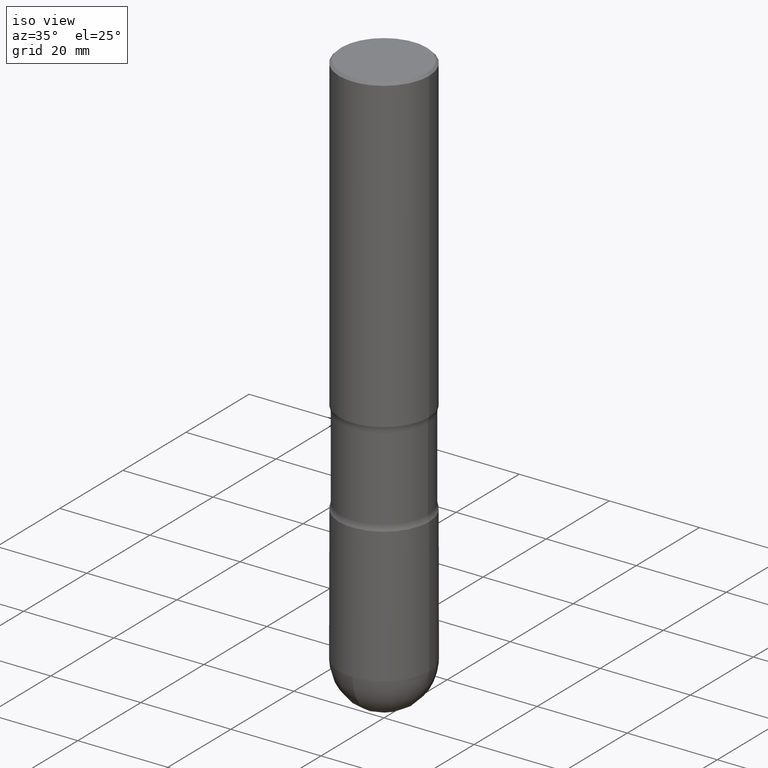
[diagram: clean part render]
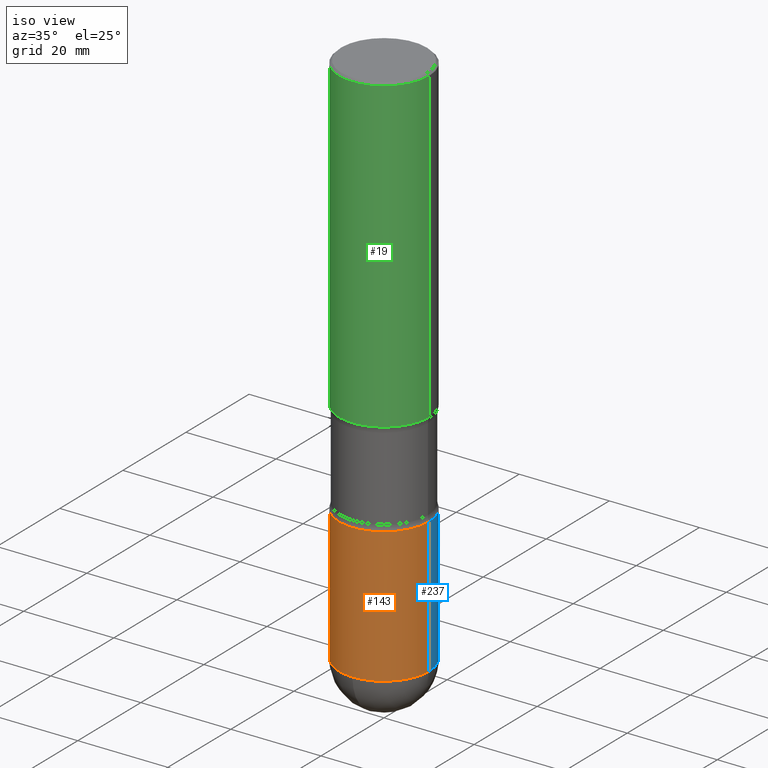
[diagram: same view with three faces highlighted in distinct colors, each labeled with its STEP entity id]
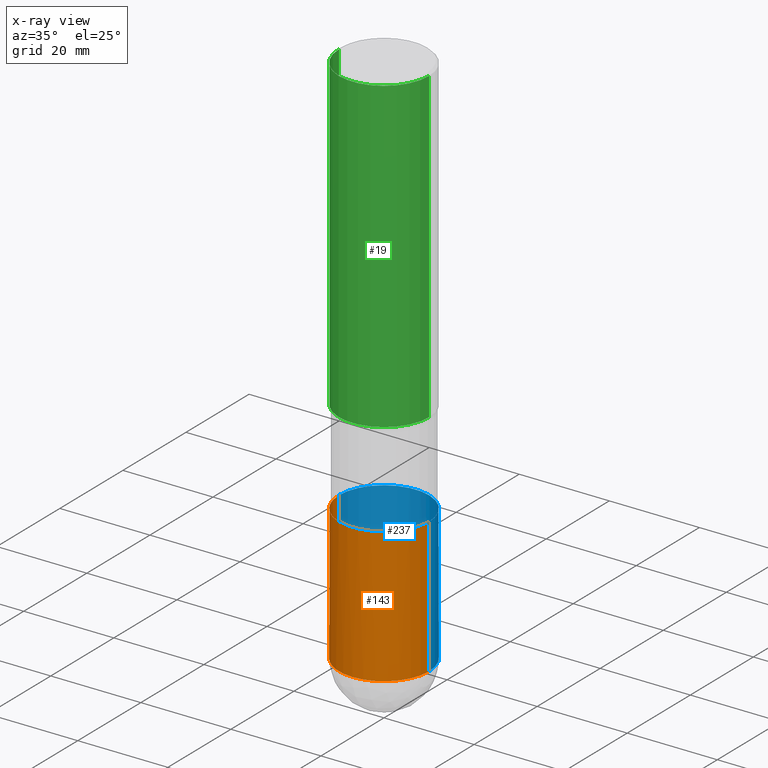
[diagram: x-ray of the same camera — body ghosted, the three highlighted faces saturated]
A machine part, iso view with three faces highlighted in distinct colors.
The next image is the same camera in x-ray (body ghosted, the three faces saturated) — at least one of them is partly hidden behind the body in this view.
Their STEP definitions:

[orange] entity #143 — the highlighted cylindrical surface (partial cylindrical patch) has radius 10 mm, axis along (-0, 0, 1).
#5 = CARTESIAN_POINT ( 'NONE',  ( -0.3936999999999992172, -1.163585338188923205E-14, -4.724399999999998379 ) ) ;
#8 = DIRECTION ( 'NONE',  ( -2.445468806185136597E-29, 3.491481338843145583E-15, 1.000000000000000000 ) ) ;
#32 = AXIS2_PLACEMENT_3D ( 'NONE', #343, #8, #434 ) ;
#42 = AXIS2_PLACEMENT_3D ( 'NONE', #74, #526, #440 ) ;
#55 = ORIENTED_EDGE ( 'NONE', *, *, #232, .T. ) ;
#72 = DIRECTION ( 'NONE',  ( -2.445468806185136877E-29, 3.491481338843145188E-15, 1.000000000000000000 ) ) ;
#74 = CARTESIAN_POINT ( 'NONE',  ( 0.000000000000000000, 0.000000000000000000, 0.000000000000000000 ) ) ;
#89 = DIRECTION ( 'NONE',  ( 1.000000000000000000, -6.982962677686267499E-15, 0.000000000000000000 ) ) ;
#102 = ORIENTED_EDGE ( 'NONE', *, *, #489, .T. ) ;
#111 = CIRCLE ( 'NONE', #435, 0.3936999999999992172 ) ;
#136 = FACE_OUTER_BOUND ( 'NONE', #167, .T. ) ;
#143 = ADVANCED_FACE ( 'NONE', ( #136 ), #289, .T. ) ;
#167 = EDGE_LOOP ( 'NONE', ( #393, #55, #311, #102, #306 ) ) ;
#174 = CIRCLE ( 'NONE', #32, 0.3936999999999992172 ) ;
#177 = CARTESIAN_POINT ( 'NONE',  ( 1.155337282794105502E-28, -1.649515443723055294E-14, -4.724399999999998379 ) ) ;
#184 = CARTESIAN_POINT ( 'NONE',  ( 8.665029620955795190E-29, -1.237136582792291865E-14, -3.543300000000000338 ) ) ;
#194 = LINE ( 'NONE', #411, #532 ) ;
#195 = VERTEX_POINT ( 'NONE', #215 ) ;
#201 = EDGE_CURVE ( 'NONE', #195, #376, #174, .T. ) ;
#215 = CARTESIAN_POINT ( 'NONE',  ( -2.749192406204962521E-15, -0.3937000000000158151, -4.724399999999996602 ) ) ;
#232 = EDGE_CURVE ( 'NONE', #244, #195, #111, .T. ) ;
#244 = VERTEX_POINT ( 'NONE', #5 ) ;
#264 = EDGE_CURVE ( 'NONE', #269, #332, #266, .T. ) ;
#266 = CIRCLE ( 'NONE', #505, 0.3936999999999993283 ) ;
#269 = VERTEX_POINT ( 'NONE', #386 ) ;
#289 = CYLINDRICAL_SURFACE ( 'NONE', #42, 0.3936999999999992728 ) ;
#306 = ORIENTED_EDGE ( 'NONE', *, *, #264, .F. ) ;
#311 = ORIENTED_EDGE ( 'NONE', *, *, #201, .T. ) ;
#332 = VERTEX_POINT ( 'NONE', #358 ) ;
#343 = CARTESIAN_POINT ( 'NONE',  ( 1.155337282794105502E-28, -1.649515443723055294E-14, -4.724399999999998379 ) ) ;
#353 = DIRECTION ( 'NONE',  ( 1.000000000000000000, -6.982962677686265922E-15, 0.000000000000000000 ) ) ;
#358 = CARTESIAN_POINT ( 'NONE',  ( 0.3936999999999993283, -1.512055823412799713E-14, -3.543300000000000338 ) ) ;
#365 = DIRECTION ( 'NONE',  ( -2.445468806185136877E-29, 3.491481338843145188E-15, 1.000000000000000000 ) ) ;
#376 = VERTEX_POINT ( 'NONE', #540 ) ;
#386 = CARTESIAN_POINT ( 'NONE',  ( -0.3936999999999993283, -1.163585338188922574E-14, -3.543300000000000338 ) ) ;
#388 = VECTOR ( 'NONE', #72, 39.37007874015748143 ) ;
#393 = ORIENTED_EDGE ( 'NONE', *, *, #512, .F. ) ;
#411 = CARTESIAN_POINT ( 'NONE',  ( 0.3936999999999992728, -2.749192406205078089E-15, 1.919750796630856248E-29 ) ) ;
#419 = LINE ( 'NONE', #514, #388 ) ;
#434 = DIRECTION ( 'NONE',  ( 1.000000000000000000, -6.982962677686267499E-15, 0.000000000000000000 ) ) ;
#435 = AXIS2_PLACEMENT_3D ( 'NONE', #177, #533, #89 ) ;
#440 = DIRECTION ( 'NONE',  ( 1.000000000000000000, -6.982962677686266711E-15, 4.876176775795935232E-29 ) ) ;
#489 = EDGE_CURVE ( 'NONE', #376, #332, #194, .T. ) ;
#505 = AXIS2_PLACEMENT_3D ( 'NONE', #184, #527, #353 ) ;
#512 = EDGE_CURVE ( 'NONE', #244, #269, #419, .T. ) ;
#514 = CARTESIAN_POINT ( 'NONE',  ( -0.3936999999999992728, 2.797406750687509264E-15, -1.936584745033352812E-29 ) ) ;
#526 = DIRECTION ( 'NONE',  ( -2.445468806185136597E-29, 3.491481338843145583E-15, 1.000000000000000000 ) ) ;
#527 = DIRECTION ( 'NONE',  ( -2.445468806185136597E-29, 3.491481338843145583E-15, 1.000000000000000000 ) ) ;
#532 = VECTOR ( 'NONE', #365, 39.37007874015748143 ) ;
#533 = DIRECTION ( 'NONE',  ( -2.445468806185136597E-29, 3.491481338843145583E-15, 1.000000000000000000 ) ) ;
#540 = CARTESIAN_POINT ( 'NONE',  ( 0.3936999999999992172, -1.718245253878181507E-14, -4.724399999999998379 ) ) ;

[blue] entity #237 — the highlighted cylindrical surface (partial cylindrical patch) has radius 10 mm, axis along (-0, 0, 1).
#5 = CARTESIAN_POINT ( 'NONE',  ( -0.3936999999999992172, -1.163585338188923205E-14, -4.724399999999998379 ) ) ;
#30 = ORIENTED_EDGE ( 'NONE', *, *, #107, .T. ) ;
#40 = EDGE_CURVE ( 'NONE', #457, #244, #548, .T. ) ;
#50 = AXIS2_PLACEMENT_3D ( 'NONE', #508, #279, #192 ) ;
#72 = DIRECTION ( 'NONE',  ( -2.445468806185136877E-29, 3.491481338843145188E-15, 1.000000000000000000 ) ) ;
#107 = EDGE_CURVE ( 'NONE', #376, #457, #539, .T. ) ;
#139 = DIRECTION ( 'NONE',  ( 1.000000000000000000, -6.982962677686267499E-15, 0.000000000000000000 ) ) ;
#150 = DIRECTION ( 'NONE',  ( -2.445468806185136597E-29, 3.491481338843145583E-15, 1.000000000000000000 ) ) ;
#156 = AXIS2_PLACEMENT_3D ( 'NONE', #485, #196, #494 ) ;
#190 = AXIS2_PLACEMENT_3D ( 'NONE', #443, #262, #564 ) ;
#192 = DIRECTION ( 'NONE',  ( 1.000000000000000000, -6.982962677686267499E-15, 0.000000000000000000 ) ) ;
#193 = CARTESIAN_POINT ( 'NONE',  ( 2.797406750687623649E-15, 0.3936999999999826194, -4.724400000000000155 ) ) ;
#194 = LINE ( 'NONE', #411, #532 ) ;
#196 = DIRECTION ( 'NONE',  ( -2.445468806185136597E-29, 3.491481338843145583E-15, 1.000000000000000000 ) ) ;
#210 = CYLINDRICAL_SURFACE ( 'NONE', #190, 0.3936999999999992728 ) ;
#237 = ADVANCED_FACE ( 'NONE', ( #250 ), #210, .T. ) ;
#244 = VERTEX_POINT ( 'NONE', #5 ) ;
#250 = FACE_OUTER_BOUND ( 'NONE', #410, .T. ) ;
#262 = DIRECTION ( 'NONE',  ( -2.445468806185136597E-29, 3.491481338843145583E-15, 1.000000000000000000 ) ) ;
#269 = VERTEX_POINT ( 'NONE', #386 ) ;
#279 = DIRECTION ( 'NONE',  ( -2.445468806185136597E-29, 3.491481338843145583E-15, 1.000000000000000000 ) ) ;
#283 = ORIENTED_EDGE ( 'NONE', *, *, #40, .T. ) ;
#329 = EDGE_CURVE ( 'NONE', #332, #269, #335, .T. ) ;
#332 = VERTEX_POINT ( 'NONE', #358 ) ;
#335 = CIRCLE ( 'NONE', #156, 0.3936999999999993283 ) ;
#358 = CARTESIAN_POINT ( 'NONE',  ( 0.3936999999999993283, -1.512055823412799713E-14, -3.543300000000000338 ) ) ;
#365 = DIRECTION ( 'NONE',  ( -2.445468806185136877E-29, 3.491481338843145188E-15, 1.000000000000000000 ) ) ;
#372 = ORIENTED_EDGE ( 'NONE', *, *, #329, .F. ) ;
#376 = VERTEX_POINT ( 'NONE', #540 ) ;
#386 = CARTESIAN_POINT ( 'NONE',  ( -0.3936999999999993283, -1.163585338188922574E-14, -3.543300000000000338 ) ) ;
#387 = AXIS2_PLACEMENT_3D ( 'NONE', #541, #150, #139 ) ;
#388 = VECTOR ( 'NONE', #72, 39.37007874015748143 ) ;
#410 = EDGE_LOOP ( 'NONE', ( #283, #510, #372, #542, #30 ) ) ;
#411 = CARTESIAN_POINT ( 'NONE',  ( 0.3936999999999992728, -2.749192406205078089E-15, 1.919750796630856248E-29 ) ) ;
#419 = LINE ( 'NONE', #514, #388 ) ;
#443 = CARTESIAN_POINT ( 'NONE',  ( 0.000000000000000000, 0.000000000000000000, 0.000000000000000000 ) ) ;
#457 = VERTEX_POINT ( 'NONE', #193 ) ;
#485 = CARTESIAN_POINT ( 'NONE',  ( 8.665029620955795190E-29, -1.237136582792291865E-14, -3.543300000000000338 ) ) ;
#489 = EDGE_CURVE ( 'NONE', #376, #332, #194, .T. ) ;
#494 = DIRECTION ( 'NONE',  ( 1.000000000000000000, -6.982962677686265922E-15, 0.000000000000000000 ) ) ;
#508 = CARTESIAN_POINT ( 'NONE',  ( 1.155337282794105502E-28, -1.649515443723055294E-14, -4.724399999999998379 ) ) ;
#510 = ORIENTED_EDGE ( 'NONE', *, *, #512, .T. ) ;
#512 = EDGE_CURVE ( 'NONE', #244, #269, #419, .T. ) ;
#514 = CARTESIAN_POINT ( 'NONE',  ( -0.3936999999999992728, 2.797406750687509264E-15, -1.936584745033352812E-29 ) ) ;
#532 = VECTOR ( 'NONE', #365, 39.37007874015748143 ) ;
#539 = CIRCLE ( 'NONE', #387, 0.3936999999999992172 ) ;
#540 = CARTESIAN_POINT ( 'NONE',  ( 0.3936999999999992172, -1.718245253878181507E-14, -4.724399999999998379 ) ) ;
#541 = CARTESIAN_POINT ( 'NONE',  ( 1.155337282794105502E-28, -1.649515443723055294E-14, -4.724399999999998379 ) ) ;
#542 = ORIENTED_EDGE ( 'NONE', *, *, #489, .F. ) ;
#548 = CIRCLE ( 'NONE', #50, 0.3936999999999992172 ) ;
#564 = DIRECTION ( 'NONE',  ( 1.000000000000000000, -6.982962677686266711E-15, 4.876176775795935232E-29 ) ) ;

[green] entity #19 — the highlighted cylindrical surface (partial cylindrical patch) has radius 10 mm, axis along (0, -0, -1).
#11 = EDGE_CURVE ( 'NONE', #360, #491, #340, .T. ) ;
#19 = ADVANCED_FACE ( 'NONE', ( #248 ), #119, .T. ) ;
#43 = AXIS2_PLACEMENT_3D ( 'NONE', #450, #463, #399 ) ;
#54 = CARTESIAN_POINT ( 'NONE',  ( -0.3936999999999996613, 2.679362779428216763E-15, -0.02000000000000033348 ) ) ;
#66 = CARTESIAN_POINT ( 'NONE',  ( 4.890937612370354609E-31, -6.982962677686407473E-17, -0.02000000000000033348 ) ) ;
#100 = LINE ( 'NONE', #401, #157 ) ;
#112 = CIRCLE ( 'NONE', #198, 0.3936999999999996613 ) ;
#119 = CYLINDRICAL_SURFACE ( 'NONE', #396, 0.3936999999999998279 ) ;
#154 = CARTESIAN_POINT ( 'NONE',  ( 0.3937000000000000499, -7.478197403594786673E-15, -2.716500000000001691 ) ) ;
#157 = VECTOR ( 'NONE', #274, 39.37007874015748143 ) ;
#198 = AXIS2_PLACEMENT_3D ( 'NONE', #66, #288, #378 ) ;
#217 = DIRECTION ( 'NONE',  ( -1.000000000000000000, 6.982962677686266711E-15, 0.000000000000000000 ) ) ;
#224 = ORIENTED_EDGE ( 'NONE', *, *, #473, .T. ) ;
#227 = EDGE_LOOP ( 'NONE', ( #513, #336, #224, #422 ) ) ;
#248 = FACE_OUTER_BOUND ( 'NONE', #227, .T. ) ;
#270 = VERTEX_POINT ( 'NONE', #345 ) ;
#274 = DIRECTION ( 'NONE',  ( 2.445468806185136877E-29, -3.491481338843145188E-15, -1.000000000000000000 ) ) ;
#288 = DIRECTION ( 'NONE',  ( 2.445468806185136597E-29, -3.491481338843145583E-15, -1.000000000000000000 ) ) ;
#291 = CARTESIAN_POINT ( 'NONE',  ( 0.3936999999999998279, -1.507234388964556951E-14, -3.543300000000000338 ) ) ;
#309 = CARTESIAN_POINT ( 'NONE',  ( 8.665029620955795190E-29, -1.237136582792291865E-14, -3.543300000000000338 ) ) ;
#318 = CARTESIAN_POINT ( 'NONE',  ( 0.3936999999999996613, -2.770807688499514156E-15, -0.02000000000000033348 ) ) ;
#336 = ORIENTED_EDGE ( 'NONE', *, *, #496, .T. ) ;
#340 = LINE ( 'NONE', #291, #504 ) ;
#345 = CARTESIAN_POINT ( 'NONE',  ( -0.3937000000000000499, -6.735416650762325903E-15, -2.716500000000001691 ) ) ;
#360 = VERTEX_POINT ( 'NONE', #318 ) ;
#378 = DIRECTION ( 'NONE',  ( -1.000000000000000000, 6.982962677686266711E-15, 0.000000000000000000 ) ) ;
#396 = AXIS2_PLACEMENT_3D ( 'NONE', #309, #497, #217 ) ;
#399 = DIRECTION ( 'NONE',  ( -1.000000000000000000, 6.982962677686267499E-15, 0.000000000000000000 ) ) ;
#401 = CARTESIAN_POINT ( 'NONE',  ( -0.3936999999999998279, -9.622173421717837012E-15, -3.543300000000000338 ) ) ;
#406 = CIRCLE ( 'NONE', #43, 0.3937000000000000499 ) ;
#414 = EDGE_CURVE ( 'NONE', #491, #270, #406, .T. ) ;
#422 = ORIENTED_EDGE ( 'NONE', *, *, #414, .F. ) ;
#423 = VERTEX_POINT ( 'NONE', #54 ) ;
#450 = CARTESIAN_POINT ( 'NONE',  ( 6.643116012001927000E-29, -9.484609056967409909E-15, -2.716500000000001691 ) ) ;
#463 = DIRECTION ( 'NONE',  ( 2.445468806185136597E-29, -3.491481338843145583E-15, -1.000000000000000000 ) ) ;
#473 = EDGE_CURVE ( 'NONE', #423, #270, #100, .T. ) ;
#481 = DIRECTION ( 'NONE',  ( 2.445468806185136877E-29, -3.491481338843145188E-15, -1.000000000000000000 ) ) ;
#491 = VERTEX_POINT ( 'NONE', #154 ) ;
#496 = EDGE_CURVE ( 'NONE', #360, #423, #112, .T. ) ;
#497 = DIRECTION ( 'NONE',  ( 2.445468806185136597E-29, -3.491481338843145583E-15, -1.000000000000000000 ) ) ;
#504 = VECTOR ( 'NONE', #481, 39.37007874015748143 ) ;
#513 = ORIENTED_EDGE ( 'NONE', *, *, #11, .F. ) ;